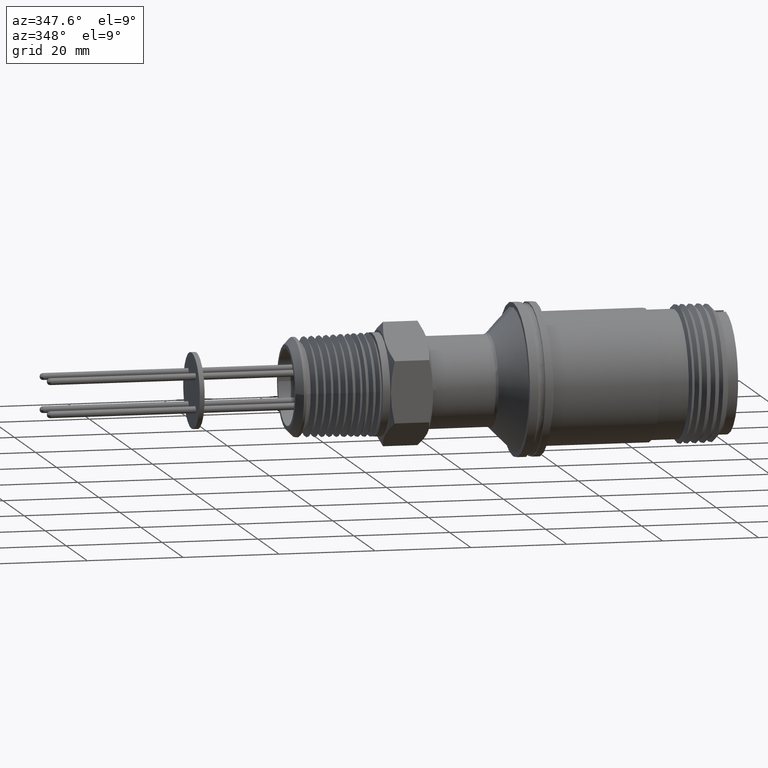
[diagram: clean part render]
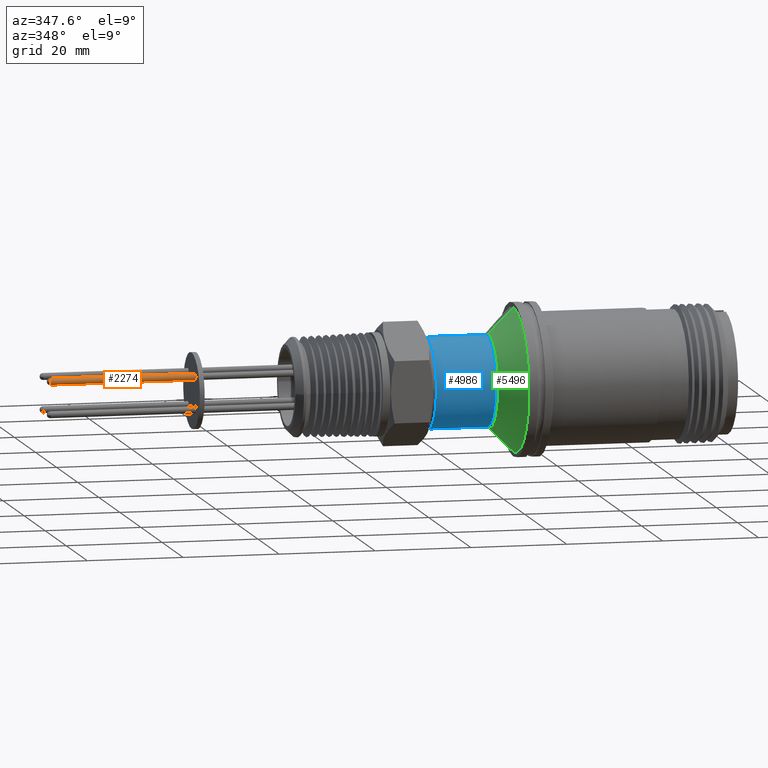
[diagram: same view with three faces highlighted in distinct colors, each labeled with its STEP entity id]
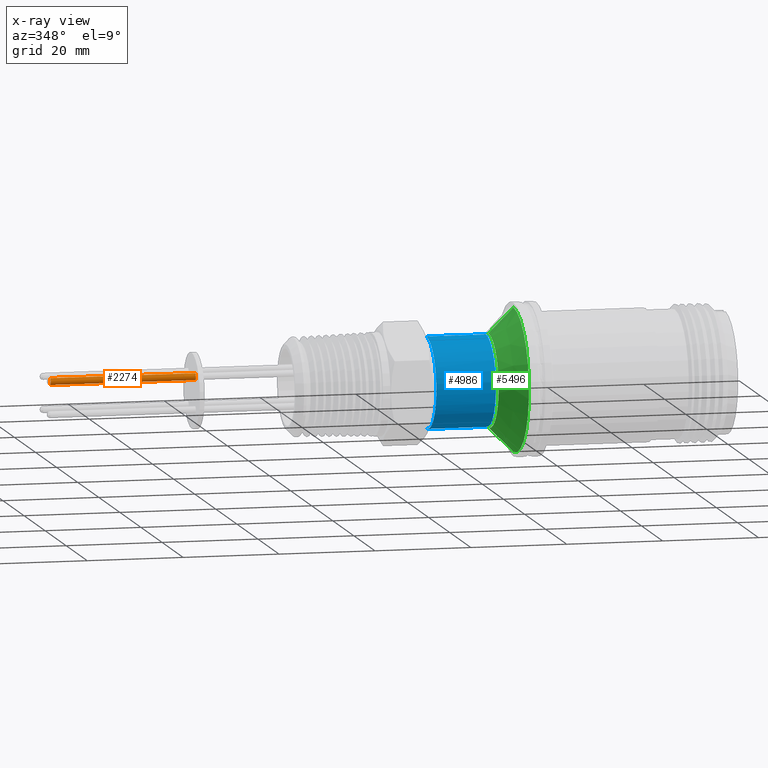
[diagram: x-ray of the same camera — body ghosted, the three highlighted faces saturated]
A machine part, auxiliary view with three faces highlighted in distinct colors.
The next image is the same camera in x-ray (body ghosted, the three faces saturated) — at least one of them is partly hidden behind the body in this view.
Their STEP definitions:

[orange] entity #2274 — the highlighted cylindrical surface (edge-blend (fillet) strip) has radius 0.7112 mm, axis along (1, 0, -0).
#221 = CARTESIAN_POINT ( 'NONE',  ( -1.427759510612071100, -0.1344187068518092600, 0.1622818351389653000 ) ) ;
#237 = CARTESIAN_POINT ( 'NONE',  ( -2.619999999999999200, -0.1624187068518093400, 0.1342818351389653000 ) ) ;
#617 = AXIS2_PLACEMENT_3D ( 'NONE', #4845, #4847, #4849 ) ;
#767 = AXIS2_PLACEMENT_3D ( 'NONE', #3447, #2741, #2775 ) ;
#905 = VECTOR ( 'NONE', #2558, 39.37007874015748100 ) ;
#909 = LINE ( 'NONE', #2492, #905 ) ;
#977 = EDGE_CURVE ( 'NONE', #6754, #7419, #4994, .T. ) ;
#1006 = ORIENTED_EDGE ( 'NONE', *, *, #2934, .T. ) ;
#1056 = ORIENTED_EDGE ( 'NONE', *, *, #5254, .T. ) ;
#1188 = ORIENTED_EDGE ( 'NONE', *, *, #5334, .F. ) ;
#1313 = ORIENTED_EDGE ( 'NONE', *, *, #2581, .T. ) ;
#1485 = EDGE_LOOP ( 'NONE', ( #1188, #1056, #1638, #1006, #1313 ) ) ;
#1638 = ORIENTED_EDGE ( 'NONE', *, *, #977, .T. ) ;
#2151 = DIRECTION ( 'NONE',  ( -1.000000000000000000, -2.641901043531979300E-017, 1.132820884859374700E-016 ) ) ;
#2159 = DIRECTION ( 'NONE',  ( 0.0000000000000000000, 0.0000000000000000000, -1.000000000000000000 ) ) ;
#2167 = CARTESIAN_POINT ( 'NONE',  ( -1.427759510612071100, -0.1344187068518092300, 0.1342818351389651900 ) ) ;
#2274 = ADVANCED_FACE ( 'NONE', ( #5096 ), #5047, .T. ) ;
#2492 = CARTESIAN_POINT ( 'NONE',  ( -2.644999999999999600, -0.1344187068518092600, 0.1622818351389654400 ) ) ;
#2558 = DIRECTION ( 'NONE',  ( 1.000000000000000000, 2.641901043531979000E-017, -1.132820884859374700E-016 ) ) ;
#2581 = EDGE_CURVE ( 'NONE', #7255, #6806, #6196, .T. ) ;
#2741 = DIRECTION ( 'NONE',  ( 1.000000000000000000, 2.641901043531979300E-017, -1.132820884859374700E-016 ) ) ;
#2775 = DIRECTION ( 'NONE',  ( 0.0000000000000000000, 0.0000000000000000000, -1.000000000000000000 ) ) ;
#2934 = EDGE_CURVE ( 'NONE', #7419, #7255, #3116, .T. ) ;
#3114 = VECTOR ( 'NONE', #8039, 39.37007874015748100 ) ;
#3116 = LINE ( 'NONE', #8041, #3114 ) ;
#3447 = CARTESIAN_POINT ( 'NONE',  ( -2.619999999999999200, -0.1344187068518092600, 0.1342818351389653300 ) ) ;
#4166 = DIRECTION ( 'NONE',  ( 0.0000000000000000000, 0.0000000000000000000, -1.000000000000000000 ) ) ;
#4167 = DIRECTION ( 'NONE',  ( 1.000000000000000000, 2.641901043531979300E-017, -1.132820884859374700E-016 ) ) ;
#4168 = CARTESIAN_POINT ( 'NONE',  ( -2.619999999999999200, -0.1344187068518092600, 0.1342818351389653300 ) ) ;
#4845 = CARTESIAN_POINT ( 'NONE',  ( -2.644999999999999600, -0.1344187068518092600, 0.1342818351389653300 ) ) ;
#4847 = DIRECTION ( 'NONE',  ( 1.000000000000000000, 2.641901043531979300E-017, -1.132820884859374700E-016 ) ) ;
#4849 = DIRECTION ( 'NONE',  ( 0.0000000000000000000, 0.0000000000000000000, -1.000000000000000000 ) ) ;
#4994 = CIRCLE ( 'NONE', #767, 0.02800000000000010100 ) ;
#5047 = CYLINDRICAL_SURFACE ( 'NONE', #617, 0.02800000000000010100 ) ;
#5096 = FACE_OUTER_BOUND ( 'NONE', #1485, .T. ) ;
#5254 = EDGE_CURVE ( 'NONE', #7635, #6754, #6003, .T. ) ;
#5334 = EDGE_CURVE ( 'NONE', #7635, #6806, #909, .T. ) ;
#5557 = AXIS2_PLACEMENT_3D ( 'NONE', #4168, #4167, #4166 ) ;
#5781 = CARTESIAN_POINT ( 'NONE',  ( -1.427759510612071100, -0.1344187068518092300, 0.1062818351389650800 ) ) ;
#5814 = CARTESIAN_POINT ( 'NONE',  ( -2.619999999999999200, -0.1344187068518092600, 0.1062818351389652200 ) ) ;
#5925 = CARTESIAN_POINT ( 'NONE',  ( -2.619999999999999200, -0.1344187068518092600, 0.1622818351389654400 ) ) ;
#6003 = CIRCLE ( 'NONE', #5557, 0.02800000000000010100 ) ;
#6196 = CIRCLE ( 'NONE', #6514, 0.02800000000000010100 ) ;
#6514 = AXIS2_PLACEMENT_3D ( 'NONE', #2167, #2151, #2159 ) ;
#6754 = VERTEX_POINT ( 'NONE', #237 ) ;
#6806 = VERTEX_POINT ( 'NONE', #221 ) ;
#7255 = VERTEX_POINT ( 'NONE', #5781 ) ;
#7419 = VERTEX_POINT ( 'NONE', #5814 ) ;
#7635 = VERTEX_POINT ( 'NONE', #5925 ) ;
#8039 = DIRECTION ( 'NONE',  ( 1.000000000000000000, 2.641901043531979000E-017, -1.132820884859374700E-016 ) ) ;
#8041 = CARTESIAN_POINT ( 'NONE',  ( -2.644999999999999600, -0.1344187068518092600, 0.1062818351389652200 ) ) ;

[blue] entity #4986 — the highlighted cylindrical surface (partial cylindrical patch) has radius 9.4869 mm, axis along (1, 0, 0).
#203 = EDGE_LOOP ( 'NONE', ( #1074, #987, #1103, #1060, #1062 ) ) ;
#261 = CARTESIAN_POINT ( 'NONE',  ( 0.9891471862576145500, 4.574055794815369500E-017, 0.3735000000000000000 ) ) ;
#266 = CARTESIAN_POINT ( 'NONE',  ( 0.9891471862576145500, -0.3491485964218151200, 0.1326555977585433300 ) ) ;
#298 = CARTESIAN_POINT ( 'NONE',  ( 0.4999999999999998300, 4.574055794815374400E-017, 0.3735000000000008900 ) ) ;
#638 = AXIS2_PLACEMENT_3D ( 'NONE', #3732, #3731, #3729 ) ;
#881 = VECTOR ( 'NONE', #2513, 39.37007874015748100 ) ;
#913 = LINE ( 'NONE', #2520, #881 ) ;
#987 = ORIENTED_EDGE ( 'NONE', *, *, #2006, .T. ) ;
#1060 = ORIENTED_EDGE ( 'NONE', *, *, #5260, .T. ) ;
#1062 = ORIENTED_EDGE ( 'NONE', *, *, #2655, .T. ) ;
#1074 = ORIENTED_EDGE ( 'NONE', *, *, #5349, .F. ) ;
#1103 = ORIENTED_EDGE ( 'NONE', *, *, #2897, .T. ) ;
#2006 = EDGE_CURVE ( 'NONE', #6648, #7471, #5126, .T. ) ;
#2259 = AXIS2_PLACEMENT_3D ( 'NONE', #3861, #3860, #3859 ) ;
#2513 = DIRECTION ( 'NONE',  ( 1.000000000000000000, 0.0000000000000000000, 0.0000000000000000000 ) ) ;
#2520 = CARTESIAN_POINT ( 'NONE',  ( 1.244000000000000200, 4.574055794815374400E-017, 0.3735000000000008900 ) ) ;
#2655 = EDGE_CURVE ( 'NONE', #6694, #6725, #6115, .T. ) ;
#2897 = EDGE_CURVE ( 'NONE', #7471, #7617, #3165, .T. ) ;
#3164 = VECTOR ( 'NONE', #7891, 39.37007874015748100 ) ;
#3165 = LINE ( 'NONE', #7858, #3164 ) ;
#3729 = DIRECTION ( 'NONE',  ( 0.0000000000000000000, 0.0000000000000000000, -1.000000000000000000 ) ) ;
#3731 = DIRECTION ( 'NONE',  ( 1.000000000000000000, 0.0000000000000000000, 0.0000000000000000000 ) ) ;
#3732 = CARTESIAN_POINT ( 'NONE',  ( 0.4999999999999998300, 0.0000000000000000000, 0.0000000000000000000 ) ) ;
#3859 = DIRECTION ( 'NONE',  ( 0.0000000000000000000, -0.9348021323207902400, 0.3551689364351896500 ) ) ;
#3860 = DIRECTION ( 'NONE',  ( -1.000000000000000000, -0.0000000000000000000, -0.0000000000000000000 ) ) ;
#3861 = CARTESIAN_POINT ( 'NONE',  ( 0.9891471862576145500, 0.0000000000000000000, 0.0000000000000000000 ) ) ;
#4147 = DIRECTION ( 'NONE',  ( 0.0000000000000000000, -0.9348021323207909000, 0.3551689364351880400 ) ) ;
#4148 = DIRECTION ( 'NONE',  ( -1.000000000000000000, -0.0000000000000000000, -0.0000000000000000000 ) ) ;
#4149 = CARTESIAN_POINT ( 'NONE',  ( 0.9891471862576145500, 0.0000000000000000000, 0.0000000000000000000 ) ) ;
#4276 = CARTESIAN_POINT ( 'NONE',  ( 1.244000000000000200, 0.0000000000000000000, 0.0000000000000000000 ) ) ;
#4277 = DIRECTION ( 'NONE',  ( 1.000000000000000000, 0.0000000000000000000, 0.0000000000000000000 ) ) ;
#4279 = DIRECTION ( 'NONE',  ( 0.0000000000000000000, 0.0000000000000000000, -1.000000000000000000 ) ) ;
#4933 = AXIS2_PLACEMENT_3D ( 'NONE', #4276, #4277, #4279 ) ;
#4986 = ADVANCED_FACE ( 'NONE', ( #6063 ), #6046, .T. ) ;
#5126 = CIRCLE ( 'NONE', #638, 0.3735000000000008900 ) ;
#5260 = EDGE_CURVE ( 'NONE', #7617, #6694, #5998, .T. ) ;
#5349 = EDGE_CURVE ( 'NONE', #6648, #6725, #913, .T. ) ;
#5552 = AXIS2_PLACEMENT_3D ( 'NONE', #4149, #4148, #4147 ) ;
#5824 = CARTESIAN_POINT ( 'NONE',  ( 0.4999999999999998300, 0.0000000000000000000, -0.3735000000000008900 ) ) ;
#5907 = CARTESIAN_POINT ( 'NONE',  ( 0.9891471862576145500, 0.0000000000000000000, -0.3735000000000000000 ) ) ;
#5998 = CIRCLE ( 'NONE', #5552, 0.3734999999999999400 ) ;
#6046 = CYLINDRICAL_SURFACE ( 'NONE', #4933, 0.3735000000000008900 ) ;
#6063 = FACE_OUTER_BOUND ( 'NONE', #203, .T. ) ;
#6115 = CIRCLE ( 'NONE', #2259, 0.3734999999999999400 ) ;
#6648 = VERTEX_POINT ( 'NONE', #298 ) ;
#6694 = VERTEX_POINT ( 'NONE', #266 ) ;
#6725 = VERTEX_POINT ( 'NONE', #261 ) ;
#7471 = VERTEX_POINT ( 'NONE', #5824 ) ;
#7617 = VERTEX_POINT ( 'NONE', #5907 ) ;
#7858 = CARTESIAN_POINT ( 'NONE',  ( 1.244000000000000200, 0.0000000000000000000, -0.3735000000000008900 ) ) ;
#7891 = DIRECTION ( 'NONE',  ( 1.000000000000000000, 0.0000000000000000000, 0.0000000000000000000 ) ) ;

[green] entity #5496 — the highlighted conical surface has half-angle 45 deg.
#27 = AXIS2_PLACEMENT_3D ( 'NONE', #494, #493, #492 ) ;
#199 = EDGE_LOOP ( 'NONE', ( #1095, #1138, #1513, #1692, #1695 ) ) ;
#222 = CARTESIAN_POINT ( 'NONE',  ( 1.010360389693210700, -4.215224444734946500E-018, -0.3822867965644046700 ) ) ;
#232 = CARTESIAN_POINT ( 'NONE',  ( 1.214000000000000200, 7.175528987107189300E-017, 0.5859264068711952400 ) ) ;
#492 = DIRECTION ( 'NONE',  ( 0.0000000000000000000, 0.0000000000000000000, -1.000000000000000000 ) ) ;
#493 = DIRECTION ( 'NONE',  ( 1.000000000000000000, 4.139886575489495200E-017, 1.089615222878585900E-016 ) ) ;
#494 = CARTESIAN_POINT ( 'NONE',  ( 1.214000000000000200, 3.139028158307853400E-049, 8.261899943315120700E-049 ) ) ;
#893 = VECTOR ( 'NONE', #2549, 39.37007874015748900 ) ;
#895 = LINE ( 'NONE', #2550, #893 ) ;
#903 = VECTOR ( 'NONE', #2556, 39.37007874015748900 ) ;
#906 = LINE ( 'NONE', #2557, #903 ) ;
#1095 = ORIENTED_EDGE ( 'NONE', *, *, #5335, .F. ) ;
#1138 = ORIENTED_EDGE ( 'NONE', *, *, #2637, .T. ) ;
#1513 = ORIENTED_EDGE ( 'NONE', *, *, #5247, .T. ) ;
#1692 = ORIENTED_EDGE ( 'NONE', *, *, #5341, .T. ) ;
#1695 = ORIENTED_EDGE ( 'NONE', *, *, #2671, .F. ) ;
#2249 = AXIS2_PLACEMENT_3D ( 'NONE', #7837, #7838, #7831 ) ;
#2549 = DIRECTION ( 'NONE',  ( 0.7071067811865452400, 2.927341870871765800E-017, -0.7071067811865496800 ) ) ;
#2550 = CARTESIAN_POINT ( 'NONE',  ( 1.214000000000000200, 3.139028158307853400E-049, -0.5859264068711953500 ) ) ;
#2556 = DIRECTION ( 'NONE',  ( 0.7071067811865450200, 1.158690243322672600E-016, 0.7071067811865499000 ) ) ;
#2557 = CARTESIAN_POINT ( 'NONE',  ( 1.214000000000000200, 7.175528987107190600E-017, 0.5859264068711953500 ) ) ;
#2637 = EDGE_CURVE ( 'NONE', #7444, #7634, #6133, .T. ) ;
#2671 = EDGE_CURVE ( 'NONE', #6774, #7597, #6096, .T. ) ;
#4186 = DIRECTION ( 'NONE',  ( 0.0000000000000000000, -0.9348021323207901200, 0.3551689364351896500 ) ) ;
#4187 = DIRECTION ( 'NONE',  ( 1.000000000000000000, 0.0000000000000000000, 0.0000000000000000000 ) ) ;
#4188 = CARTESIAN_POINT ( 'NONE',  ( 1.010360389693210700, 0.0000000000000000000, 0.0000000000000000000 ) ) ;
#5247 = EDGE_CURVE ( 'NONE', #7634, #6794, #6009, .T. ) ;
#5335 = EDGE_CURVE ( 'NONE', #7444, #6774, #906, .T. ) ;
#5341 = EDGE_CURVE ( 'NONE', #6794, #7597, #895, .T. ) ;
#5496 = ADVANCED_FACE ( 'NONE', ( #5575 ), #5573, .T. ) ;
#5561 = AXIS2_PLACEMENT_3D ( 'NONE', #4188, #4187, #4186 ) ;
#5573 = CONICAL_SURFACE ( 'NONE', #27, 0.5859264068711953500, 0.7853981633974516100 ) ;
#5575 = FACE_OUTER_BOUND ( 'NONE', #199, .T. ) ;
#5818 = CARTESIAN_POINT ( 'NONE',  ( 1.010360389693210700, 5.507073557924568300E-017, 0.3822867965644046700 ) ) ;
#5887 = CARTESIAN_POINT ( 'NONE',  ( 1.214000000000000200, 2.643045722089860000E-033, -0.5859264068711954600 ) ) ;
#5924 = CARTESIAN_POINT ( 'NONE',  ( 1.010360389693210700, -0.3573625125864889900, 0.1357763949489950700 ) ) ;
#6009 = CIRCLE ( 'NONE', #5561, 0.3822867965644046700 ) ;
#6096 = CIRCLE ( 'NONE', #2249, 0.5859264068711953500 ) ;
#6133 = CIRCLE ( 'NONE', #6473, 0.3822867965644046700 ) ;
#6379 = DIRECTION ( 'NONE',  ( 0.0000000000000000000, -0.9348021323207901200, 0.3551689364351896500 ) ) ;
#6381 = DIRECTION ( 'NONE',  ( 1.000000000000000000, 0.0000000000000000000, 0.0000000000000000000 ) ) ;
#6382 = CARTESIAN_POINT ( 'NONE',  ( 1.010360389693210700, 0.0000000000000000000, 0.0000000000000000000 ) ) ;
#6473 = AXIS2_PLACEMENT_3D ( 'NONE', #6382, #6381, #6379 ) ;
#6774 = VERTEX_POINT ( 'NONE', #232 ) ;
#6794 = VERTEX_POINT ( 'NONE', #222 ) ;
#7444 = VERTEX_POINT ( 'NONE', #5818 ) ;
#7597 = VERTEX_POINT ( 'NONE', #5887 ) ;
#7634 = VERTEX_POINT ( 'NONE', #5924 ) ;
#7831 = DIRECTION ( 'NONE',  ( 0.0000000000000000000, 0.0000000000000000000, -1.000000000000000000 ) ) ;
#7837 = CARTESIAN_POINT ( 'NONE',  ( 1.214000000000000200, 3.139028158307853400E-049, 8.261899943315120700E-049 ) ) ;
#7838 = DIRECTION ( 'NONE',  ( 1.000000000000000000, 4.139886575489495200E-017, 1.089615222878585900E-016 ) ) ;